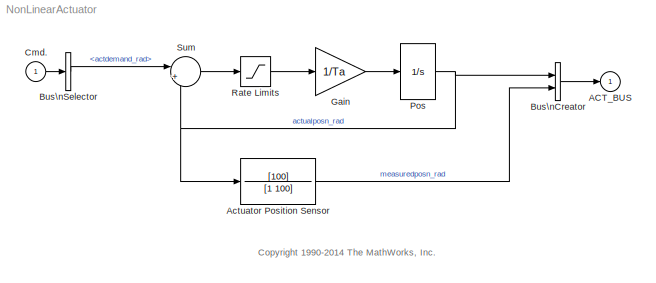
MODEL NonLinearActuator
KIND model
BLOCK [Outport] ACT_BUS
  BusOutputAsStruct = on
  IconDisplay = Port number
  InitialOutput = 0
  OutDataTypeStr = Bus: ACT_BUS
  SID = 10
BLOCK [TransferFcn] Actuator Position Sensor
  Denominator = [1 100]
  Numerator = [100]
  SID = 2
BLOCK [BusCreator] Bus\nCreator
  DisplayOption = bar
  Inputs = 2
  OutDataTypeStr = Bus: ACT_BUS
  Ports = [2, 1]
  SID = 3
BLOCK [BusSelector] Bus\nSelector
  OutputSignals = actdemand_rad
  Ports = [1, 1]
  SID = 4
BLOCK [Inport] Cmd.
  IconDisplay = Port number
  OutDataTypeStr = Bus: CONTROL_BUS
  SID = 1
BLOCK [Gain] Gain
  Gain = 1/Ta
  SID = 6
BLOCK [Integrator] Pos
  LimitOutput = on
  LowerSaturationLimit = -pi*45/180
  Ports = [1, 1]
  SID = 7
  UpperSaturationLimit = pi*45/180
BLOCK [Saturate] Rate Limits
  InputPortMap = u0
  Ports = [1, 1]
  SID = 8
BLOCK [Sum] Sum
  IconShape = round
  Inputs = |+-
  Ports = [2, 1]
  SID = 9
ANNOTATION (root): <copyright redacted>
LINE Actuator Position Sensor:1 -> Bus\nCreator:2
LINE Bus\nCreator:1 -> ACT_BUS:1
LINE Bus\nSelector:1 -> Sum:1
LINE Cmd.:1 -> Bus\nSelector:1
LINE Gain:1 -> Pos:1
NET Pos:1 -> Actuator Position Sensor:1, Bus\nCreator:1, Sum:2
LINE Rate Limits:1 -> Gain:1
LINE Sum:1 -> Rate Limits:1
note: NET lines group one-source signal fan-out (src -> all destinations, sorted); 1:1 wires keep LINE
